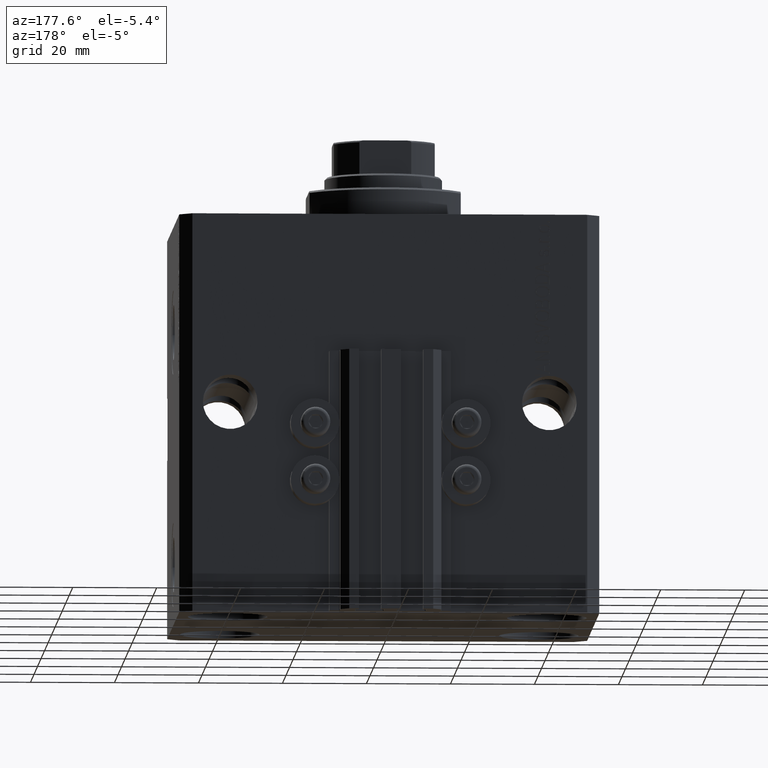
[diagram: clean part render]
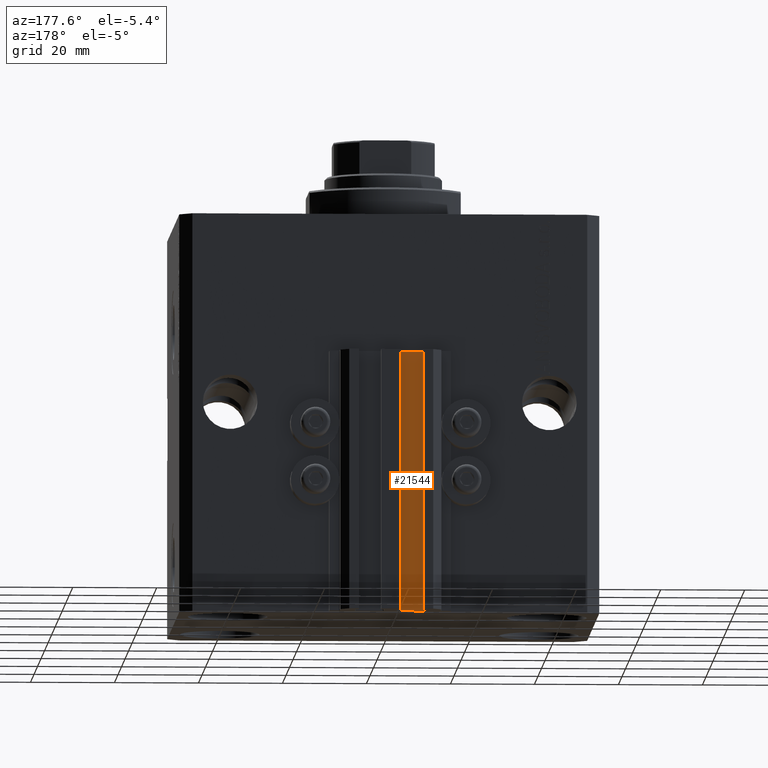
[diagram: same view with one face highlighted and labeled with its STEP entity id]
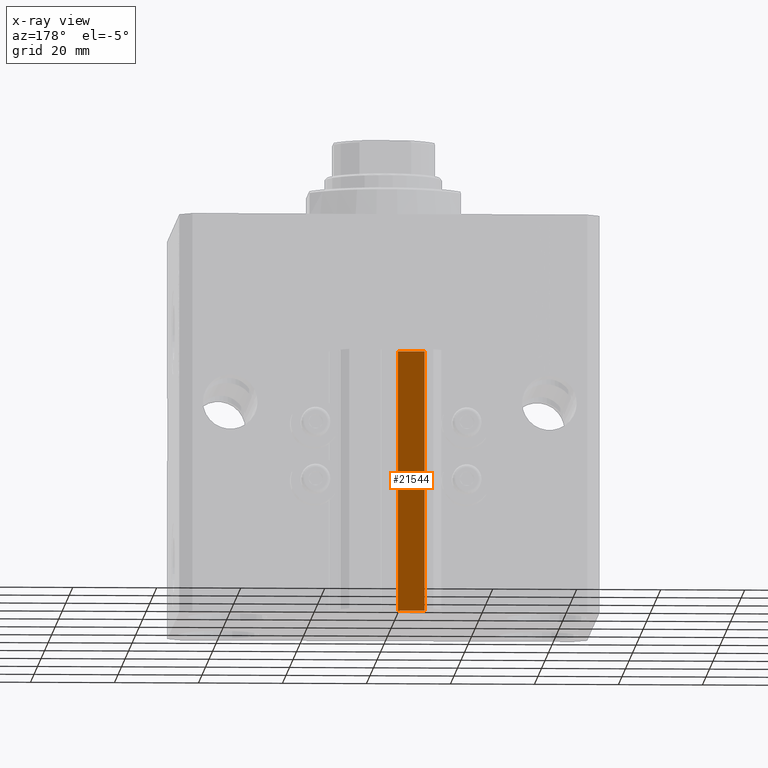
[diagram: x-ray of the same camera — body ghosted, the highlighted face saturated]
A machine part, auxiliary view. The second image highlights one B-rep face of the part: STEP entity #21544.
The next image is the same camera in x-ray: the body ghosted, the highlighted face saturated — about 0% of this face is hidden behind the body in this view.
In plain terms, the highlighted planar face has unit normal (0, 1, 0).
Its self-contained STEP definition (entity closure, byte-faithful):
#389 = DIRECTION ( 'NONE',  ( 0.000000000000000000, 1.000000000000000000, -0.000000000000000000 ) ) ;
#3694 = VERTEX_POINT ( 'NONE', #35699 ) ;
#4066 = LINE ( 'NONE', #35491, #19709 ) ;
#5930 = CARTESIAN_POINT ( 'NONE',  ( -1.800000000000000933, 39.50000000000000000, -95.00000000000000000 ) ) ;
#6179 = DIRECTION ( 'NONE',  ( 0.000000000000000000, 0.000000000000000000, 1.000000000000000000 ) ) ;
#8307 = CARTESIAN_POINT ( 'NONE',  ( -1.800000000000000933, 39.50000000000000000, -95.00000000000000000 ) ) ;
#13404 = VERTEX_POINT ( 'NONE', #8307 ) ;
#13839 = VECTOR ( 'NONE', #33777, 1000.000000000000000 ) ;
#14385 = DIRECTION ( 'NONE',  ( -1.000000000000000000, 0.000000000000000000, 0.000000000000000000 ) ) ;
#14671 = EDGE_CURVE ( 'NONE', #3694, #46639, #4066, .T. ) ;
#15276 = EDGE_CURVE ( 'NONE', #13404, #18209, #43066, .T. ) ;
#15889 = VECTOR ( 'NONE', #6179, 1000.000000000000000 ) ;
#15928 = LINE ( 'NONE', #30636, #13839 ) ;
#18209 = VERTEX_POINT ( 'NONE', #44455 ) ;
#18976 = DIRECTION ( 'NONE',  ( 0.000000000000000000, 0.000000000000000000, 1.000000000000000000 ) ) ;
#19709 = VECTOR ( 'NONE', #21509, 1000.000000000000000 ) ;
#20704 = EDGE_CURVE ( 'NONE', #13404, #3694, #44027, .T. ) ;
#21509 = DIRECTION ( 'NONE',  ( 0.000000000000000000, 0.000000000000000000, 1.000000000000000000 ) ) ;
#21544 = ADVANCED_FACE ( 'NONE', ( #37064 ), #40910, .T. ) ;
#23376 = EDGE_LOOP ( 'NONE', ( #34492, #46985, #36273, #34167 ) ) ;
#26783 = VECTOR ( 'NONE', #14385, 1000.000000000000000 ) ;
#27850 = EDGE_CURVE ( 'NONE', #18209, #46639, #15928, .T. ) ;
#29330 = CARTESIAN_POINT ( 'NONE',  ( -8.199999999999997513, 39.50000000000000000, -33.00000000000000000 ) ) ;
#30636 = CARTESIAN_POINT ( 'NONE',  ( -1.800000000000000933, 39.50000000000000000, -33.00000000000000000 ) ) ;
#32215 = AXIS2_PLACEMENT_3D ( 'NONE', #33437, #389, #18976 ) ;
#33437 = CARTESIAN_POINT ( 'NONE',  ( -1.800000000000000933, 39.50000000000000000, -95.00000000000000000 ) ) ;
#33777 = DIRECTION ( 'NONE',  ( -1.000000000000000000, 0.000000000000000000, 0.000000000000000000 ) ) ;
#34167 = ORIENTED_EDGE ( 'NONE', *, *, #14671, .T. ) ;
#34492 = ORIENTED_EDGE ( 'NONE', *, *, #27850, .F. ) ;
#35491 = CARTESIAN_POINT ( 'NONE',  ( -8.199999999999997513, 39.50000000000000000, -95.00000000000000000 ) ) ;
#35699 = CARTESIAN_POINT ( 'NONE',  ( -8.199999999999997513, 39.50000000000000000, -95.00000000000000000 ) ) ;
#36273 = ORIENTED_EDGE ( 'NONE', *, *, #20704, .T. ) ;
#37064 = FACE_OUTER_BOUND ( 'NONE', #23376, .T. ) ;
#40910 = PLANE ( 'NONE',  #32215 ) ;
#43066 = LINE ( 'NONE', #5930, #15889 ) ;
#44027 = LINE ( 'NONE', #44269, #26783 ) ;
#44269 = CARTESIAN_POINT ( 'NONE',  ( -1.800000000000000933, 39.50000000000000000, -95.00000000000000000 ) ) ;
#44455 = CARTESIAN_POINT ( 'NONE',  ( -1.800000000000000933, 39.50000000000000000, -33.00000000000000000 ) ) ;
#46639 = VERTEX_POINT ( 'NONE', #29330 ) ;
#46985 = ORIENTED_EDGE ( 'NONE', *, *, #15276, .F. ) ;